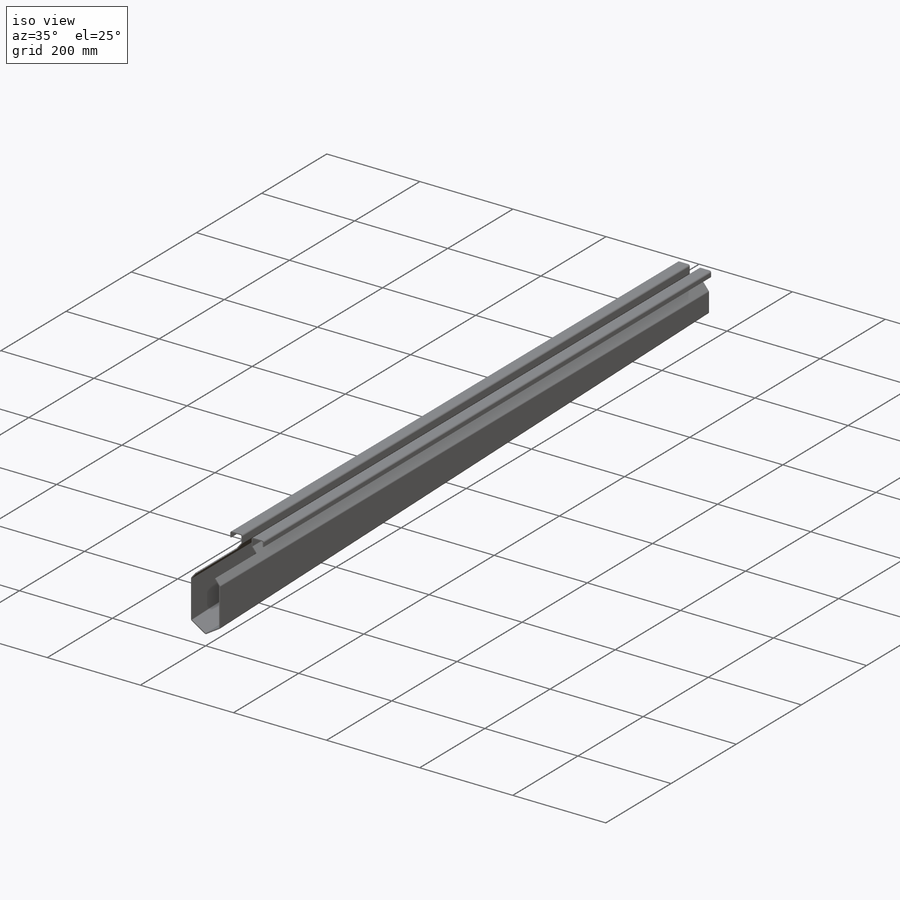
[diagram: iso view]
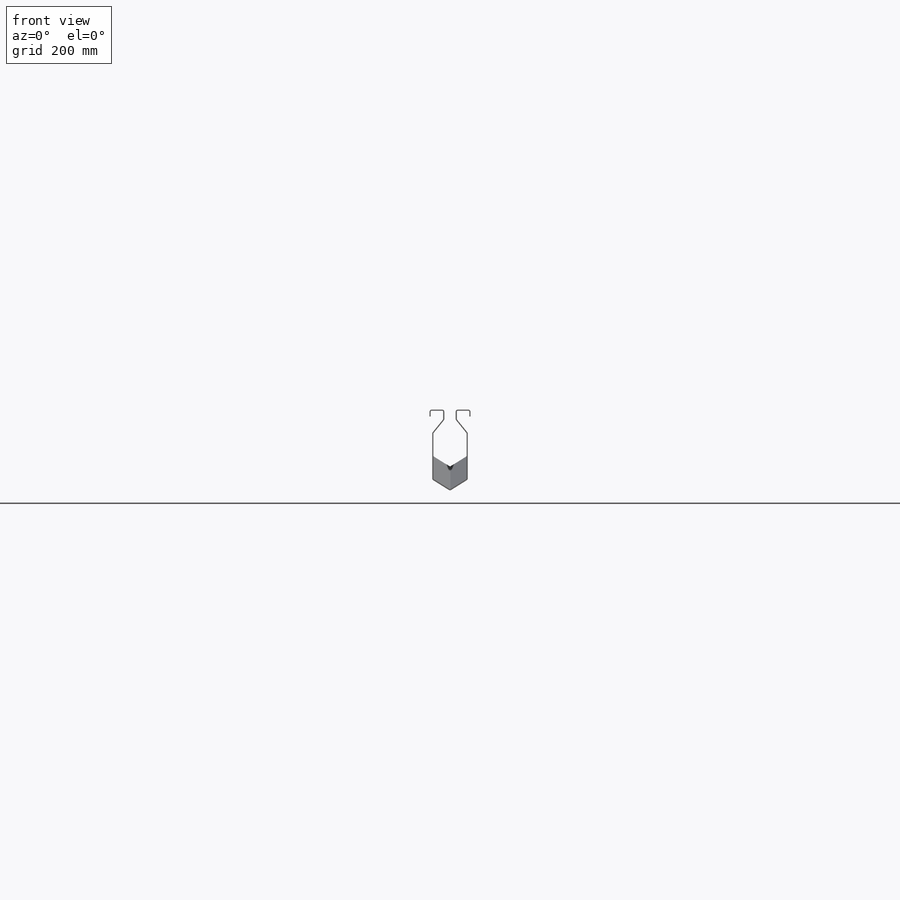
[diagram: front view]
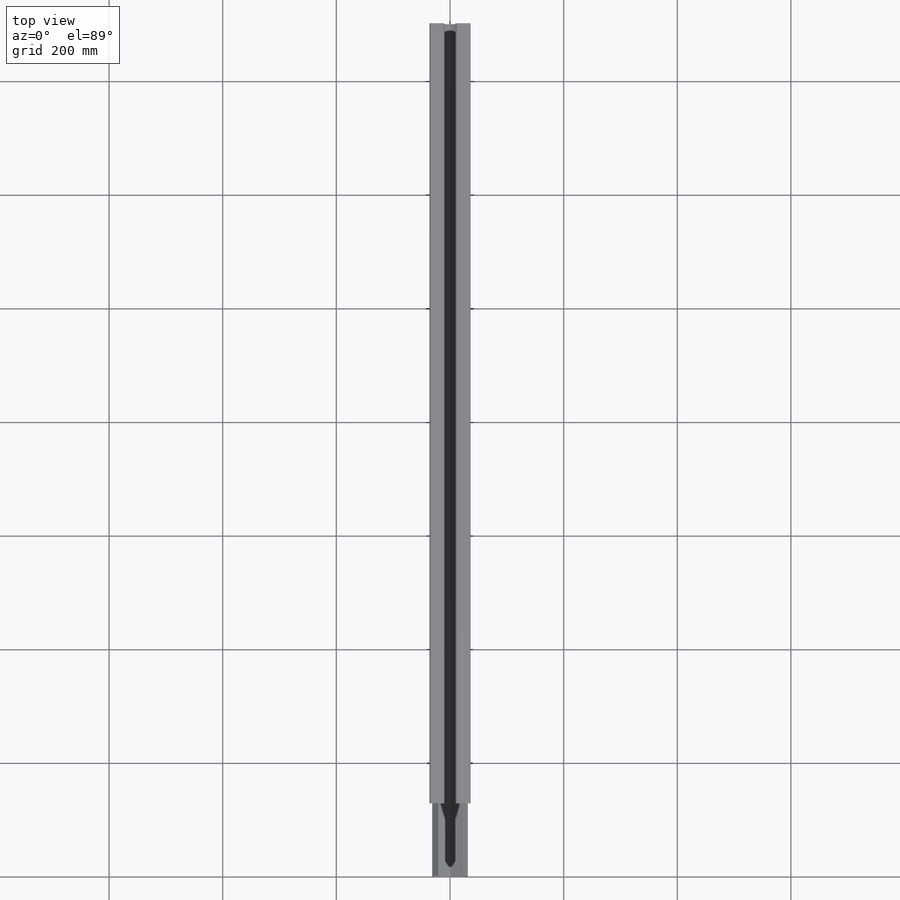
[diagram: top view]
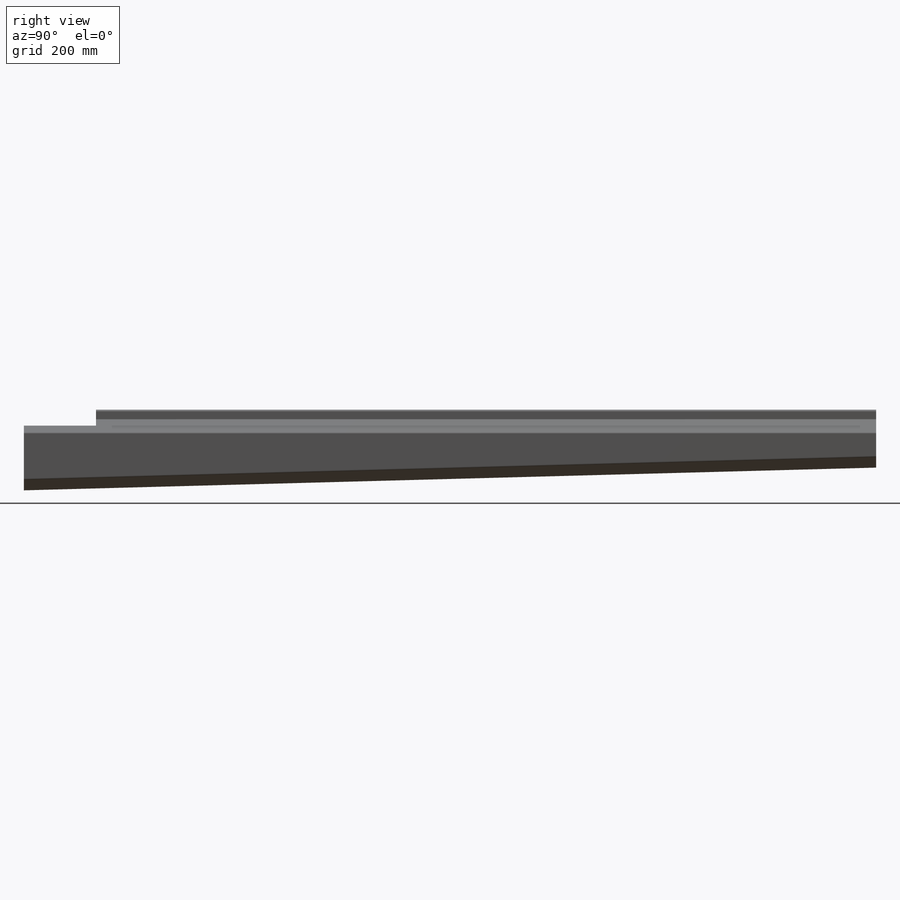
[diagram: right view]
SOLIDWORKS PART (.sldprt)
format: sldprt  version: not decoded by parser v0  size: 520,192 bytes
history: native  units: mm
features: sketch x10, sheet_metal_op x2, material x1, plane x1, cut_extrude x1, extrude x1 + 22 further entries (+12 scaffold rows collapsed; 2 parser-record rows omitted)
feature tree (52):
  scaffold x12  (default folders/planes/origin — collapsed)
  material  "Material <nicht festgelegt>"
  sketch  "Skizze1"  dims[D1=1.5mm D3=1.5mm D4=1.5mm D2=~32.761489mm D5=12.0mm D6=12.0mm D7=122.0deg D8=~2129.301687mm D9=140.0mm D10=~32.761489mm D11=19.0mm]
  sketch  "Skizze2"  dims[D1=1500.0mm D2=~1461.900905mm]
  plane  "Ebene1"
  sketch  "Skizze3"  dims[c1.D1=1.5mm c1.D3=1.5mm c1.D4=1.5mm c1.D2=~32.761489mm c1.D5=12.0mm c1.D6=12.0mm c1.D7=~2129.301687mm c1.D8=~2129.301687mm c1.D9=100.0mm c1.D10=~32.761489mm c2.D1=1.0mm c2.D2=0.273 c2.D3=0.0deg c3.D1=1.5mm c3.D4=~1570.796327mm c3.D5=1.0 c3.D8=0.0deg c3.D9=0.0deg c3.Freiform-Biegung2=0.0 c4.D1=1.5mm c4.D4=~1570.796327mm c4.D5=2.0 c4.D8=0.0deg c4.D9=0.0deg c4.Freiform-Biegung3=0.0 c5.D1=1.5mm c5.D4=~680.678408mm c5.D5=3.0 c5.D8=0.0deg c5.D9=0.0deg c5.Freiform-Biegung4=0.0 c6.D1=1.5mm c6.D4=~680.678408mm c6.D5=4.0 c6.D8=0.0deg c6.D9=0.0deg c6.Freiform-Biegung5=0.0 c7.D1=1000.0mm c7.D4=1000.0mm c7.D5=5.0 c7.D8=0.0deg c7.D9=0.0deg c7.Freiform-Biegung6=0.0 c8.D1=1000.0mm c8.D4=1000.0mm c8.D5=6.0 c8.D8=0.0deg c8.D9=0.0deg c8.Freiform-Biegung7=0.0 c9.D1=1000.0mm c9.D4=1000.0mm c9.D5=7.0 c9.D8=0.0deg c9.D9=0.0deg c9.Freiform-Biegung8=0.0 c10.D1=1.5mm c10.D4=~680.678408mm c10.D5=8.0 c10.D8=0.0deg c10.D9=0.0deg c10.Freiform-Biegung9=0.0 c11.D1=1.5mm c11.D4=~680.678408mm c11.D5=9.0 c11.D8=0.0deg c11.D9=0.0deg c11.Freiform-Biegung10=0.0 c12.D1=1.5mm c12.D4=~1570.796327mm c12.D5=10.0 c12.D8=0.0deg c12.D9=0.0deg c12.Freiform-Biegung11=0.0 c13.D1=1.5mm c13.D4=~1570.796327mm c13.D5=11.0 c13.D8=0.0deg c13.D9=0.0deg c14.D1=0.0mm]
  sketch  "Skizze8"  dims[c1.D1=254.0mm c1.D2=254.0mm c2.D1=254.0mm]
  cut_extrude  "Schnitt-Linear austragen1"  Depth=28mm
  sketch  "Biegung-Linien1"
  sketch  "Rahmen1"
  sheet_metal_op  "Blech(1)"
  "Abwicklung(1)"
  sketch  "Biegung-Linien2"
  sketch  "Rahmen2"
  "Abwickeln-<Freiform-Biegung2>1"
  "Abwickeln-<Freiform-Biegung3>1"
  "Abwickeln-<Freiform-Biegung4>1"
  "Abwickeln-<Freiform-Biegung5>1"
  "Abwickeln-<Freiform-Biegung6>1"
  "Abwickeln-<Freiform-Biegung7>1"
  "Abwickeln-<Freiform-Biegung8>1"
  "Abwickeln-<Freiform-Biegung9>1"
  "Abwickeln-<Freiform-Biegung10>1"
  "Abwickeln-<Freiform-Biegung11>1"
  parser-record x2  (decoder bookkeeping rows leaked as tree rows — omitted from the tree; the rows remain in map.json)
  extrude  "Blech(2)"  Depth=1mm
  sheet_metal_op  "Abwicklung(1)"
  sketch  "Biegung-Linien2"
  sketch  "Rahmen2"
  "Abwickeln-<Freiform-Biegung1>1"
  "Abwickeln-<Freiform-Biegung2>1"
  "Abwickeln-<Freiform-Biegung3>1"
  "Abwickeln-<Freiform-Biegung4>1"
  "Abwickeln-<Freiform-Biegung5>1"
  "Abwickeln-<Freiform-Biegung6>1"
  "Abwickeln-<Freiform-Biegung7>1"
  "Abwickeln-<Freiform-Biegung8>1"
  "Abwickeln-<Freiform-Biegung9>1"
  "Abwickeln-<Freiform-Biegung10>1"
  "Abwickeln-<Freiform-Biegung11>1"
decode coverage: 6 of 14 modeling features carry decoded parameters; 22 rows unclassified (native names shown)
note: ~ marks probable driven/reference dimensions
note: suppression state not decoded; provenance and decode notes live in map.json
